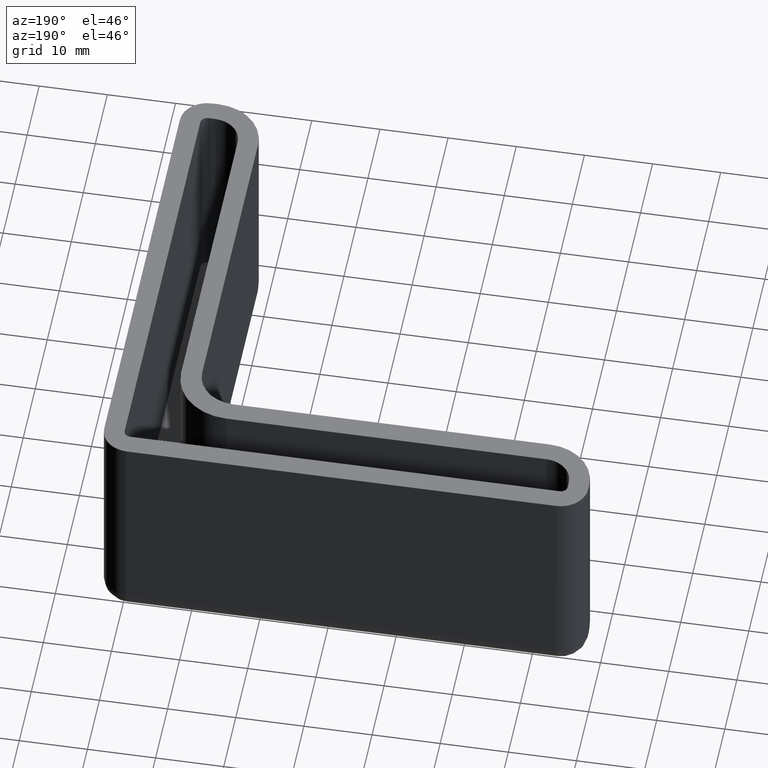
[diagram: clean part render]
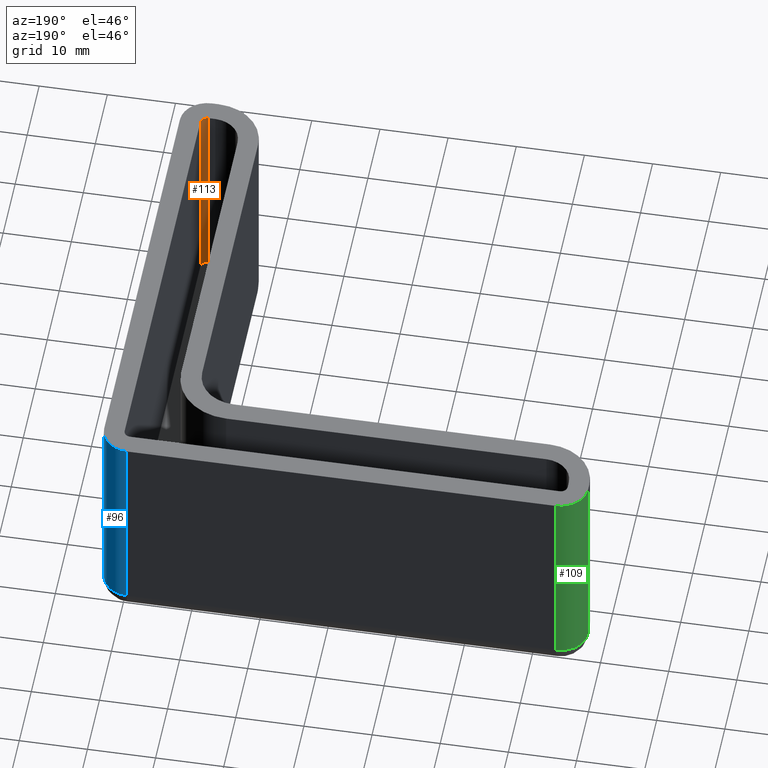
[diagram: same view with three faces highlighted in distinct colors, each labeled with its STEP entity id]
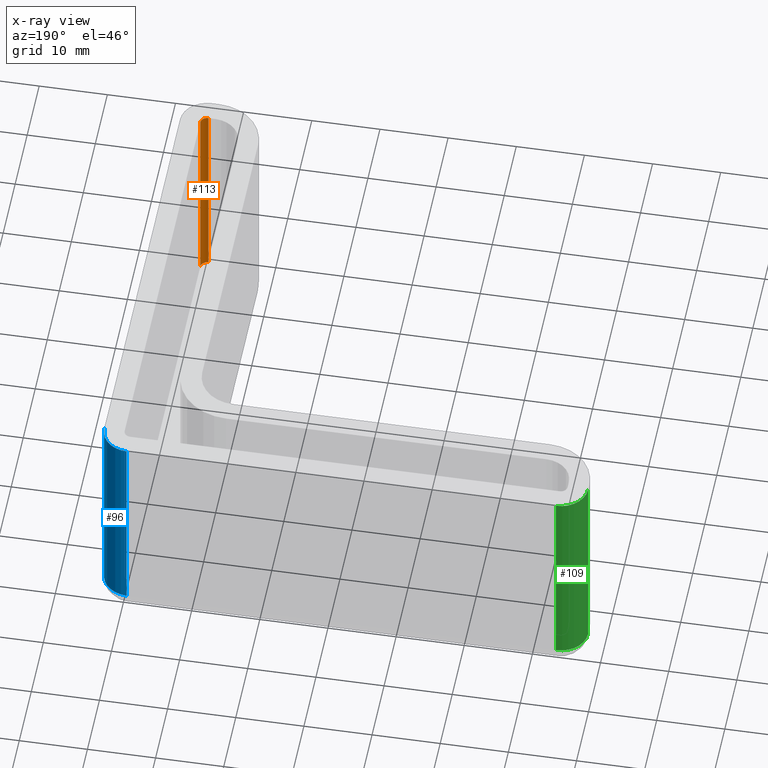
[diagram: x-ray of the same camera — body ghosted, the three highlighted faces saturated]
A machine part, auxiliary view with three faces highlighted in distinct colors.
The next image is the same camera in x-ray (body ghosted, the three faces saturated) — at least one of them is partly hidden behind the body in this view.
Their STEP definitions:

[orange] entity #113 — the highlighted cylindrical surface (edge-blend (fillet) strip) has radius 1 mm, axis along (-0, 0, -1).
#113 = ADVANCED_FACE( '', ( #192 ), #193, .F. );
#192 = FACE_OUTER_BOUND( '', #316, .T. );
#193 = CYLINDRICAL_SURFACE( '', #317, 1.00000000000000 );
#316 = EDGE_LOOP( '', ( #611, #612, #613, #614 ) );
#317 = AXIS2_PLACEMENT_3D( '', #615, #616, #617 );
#611 = ORIENTED_EDGE( '', *, *, #664, .F. );
#612 = ORIENTED_EDGE( '', *, *, #713, .T. );
#613 = ORIENTED_EDGE( '', *, *, #649, .T. );
#614 = ORIENTED_EDGE( '', *, *, #667, .T. );
#615 = CARTESIAN_POINT( '', ( -0.999999999999997, -64.0000000000000, -30.0000000000000 ) );
#616 = DIRECTION( '', ( -3.58678896750442E-017, 8.65927457071936E-017, -1.00000000000000 ) );
#617 = DIRECTION( '', ( 0.707106781186549, -0.707106781186546, -8.65927457071935E-017 ) );
#649 = EDGE_CURVE( '', #773, #771, #774, .T. );
#664 = EDGE_CURVE( '', #800, #802, #803, .T. );
#667 = EDGE_CURVE( '', #771, #802, #806, .T. );
#713 = EDGE_CURVE( '', #800, #773, #869, .T. );
#771 = VERTEX_POINT( '', #943 );
#773 = VERTEX_POINT( '', #946 );
#774 = CIRCLE( '', #947, 1.00000000000000 );
#800 = VERTEX_POINT( '', #980 );
#802 = VERTEX_POINT( '', #983 );
#803 = CIRCLE( '', #984, 1.00000000000000 );
#806 = LINE( '', #989, #990 );
#869 = LINE( '', #1078, #1079 );
#943 = CARTESIAN_POINT( '', ( 7.80625564189563E-015, -64.0000000000000, -3.46944695195361E-015 ) );
#946 = CARTESIAN_POINT( '', ( -0.999999999999990, -65.0000000000000, -3.46944695195361E-015 ) );
#947 = AXIS2_PLACEMENT_3D( '', #1139, #1140, #1141 );
#980 = CARTESIAN_POINT( '', ( -0.999999999999997, -65.0000000000000, -30.0000000000000 ) );
#983 = CARTESIAN_POINT( '', ( 8.67361737988404E-016, -64.0000000000000, -30.0000000000000 ) );
#984 = AXIS2_PLACEMENT_3D( '', #1168, #1169, #1170 );
#989 = CARTESIAN_POINT( '', ( 8.67361737988404E-016, -64.0000000000000, -30.0000000000000 ) );
#990 = VECTOR( '', #1173, 1000.00000000000 );
#1078 = CARTESIAN_POINT( '', ( -0.999999999999997, -65.0000000000000, -30.0000000000000 ) );
#1079 = VECTOR( '', #1259, 1000.00000000000 );
#1139 = CARTESIAN_POINT( '', ( -1.00000000000000, -64.0000000000000, -3.46944695195361E-015 ) );
#1140 = DIRECTION( '', ( 3.58678896750442E-017, -8.65927457071936E-017, 1.00000000000000 ) );
#1141 = DIRECTION( '', ( 0.707106781186549, -0.707106781186546, -8.65927457071935E-017 ) );
#1168 = CARTESIAN_POINT( '', ( -0.999999999999997, -64.0000000000000, -30.0000000000000 ) );
#1169 = DIRECTION( '', ( 3.58678896750442E-017, -8.65927457071936E-017, 1.00000000000000 ) );
#1170 = DIRECTION( '', ( 0.707106781186549, -0.707106781186546, -8.65927457071935E-017 ) );
#1173 = DIRECTION( '', ( -3.58678896750442E-017, 8.65927457071936E-017, -1.00000000000000 ) );
#1259 = DIRECTION( '', ( 3.58678896750442E-017, -8.65927457071936E-017, 1.00000000000000 ) );

[blue] entity #96 — the highlighted cylindrical surface (edge-blend (fillet) strip) has radius 4 mm, axis along (-0, 0, -1).
#96 = ADVANCED_FACE( '', ( #158 ), #159, .T. );
#158 = FACE_OUTER_BOUND( '', #267, .T. );
#159 = CYLINDRICAL_SURFACE( '', #268, 4.00000000000000 );
#267 = EDGE_LOOP( '', ( #495, #496, #497, #498 ) );
#268 = AXIS2_PLACEMENT_3D( '', #499, #500, #501 );
#495 = ORIENTED_EDGE( '', *, *, #680, .F. );
#496 = ORIENTED_EDGE( '', *, *, #695, .T. );
#497 = ORIENTED_EDGE( '', *, *, #634, .T. );
#498 = ORIENTED_EDGE( '', *, *, #696, .T. );
#499 = CARTESIAN_POINT( '', ( -1.00000000000000, -1.00000000000000, -30.0000000000000 ) );
#500 = DIRECTION( '', ( -3.58678896750442E-017, 8.65927457071936E-017, -1.00000000000000 ) );
#501 = DIRECTION( '', ( 0.707106781186547, 0.707106781186548, 3.58678896750443E-017 ) );
#634 = EDGE_CURVE( '', #744, #742, #745, .T. );
#680 = EDGE_CURVE( '', #823, #815, #825, .T. );
#695 = EDGE_CURVE( '', #823, #744, #848, .T. );
#696 = EDGE_CURVE( '', #742, #815, #849, .T. );
#742 = VERTEX_POINT( '', #906 );
#744 = VERTEX_POINT( '', #909 );
#745 = CIRCLE( '', #910, 4.00000000000000 );
#815 = VERTEX_POINT( '', #1006 );
#823 = VERTEX_POINT( '', #1016 );
#825 = CIRCLE( '', #1018, 4.00000000000000 );
#848 = LINE( '', #1047, #1048 );
#849 = LINE( '', #1049, #1050 );
#906 = CARTESIAN_POINT( '', ( 3.00000000000000, -1.00000000000000, 0.000000000000000 ) );
#909 = CARTESIAN_POINT( '', ( -0.999999999999999, 3.00000000000000, 0.000000000000000 ) );
#910 = AXIS2_PLACEMENT_3D( '', #1110, #1111, #1112 );
#1006 = CARTESIAN_POINT( '', ( 3.00000000000000, -1.00000000000000, -30.0000000000000 ) );
#1016 = CARTESIAN_POINT( '', ( -1.00000000000000, 3.00000000000000, -30.0000000000000 ) );
#1018 = AXIS2_PLACEMENT_3D( '', #1192, #1193, #1194 );
#1047 = CARTESIAN_POINT( '', ( -1.00000000000000, 3.00000000000000, -30.0000000000000 ) );
#1048 = VECTOR( '', #1225, 1000.00000000000 );
#1049 = CARTESIAN_POINT( '', ( 3.00000000000000, -1.00000000000000, -30.0000000000000 ) );
#1050 = VECTOR( '', #1226, 1000.00000000000 );
#1110 = CARTESIAN_POINT( '', ( -0.999999999999999, -1.00000000000000, 0.000000000000000 ) );
#1111 = DIRECTION( '', ( -3.58678896750442E-017, 8.65927457071936E-017, -1.00000000000000 ) );
#1112 = DIRECTION( '', ( 0.707106781186547, 0.707106781186548, 3.58678896750443E-017 ) );
#1192 = CARTESIAN_POINT( '', ( -1.00000000000000, -1.00000000000000, -30.0000000000000 ) );
#1193 = DIRECTION( '', ( -3.58678896750442E-017, 8.65927457071936E-017, -1.00000000000000 ) );
#1194 = DIRECTION( '', ( 0.707106781186547, 0.707106781186548, 3.58678896750442E-017 ) );
#1225 = DIRECTION( '', ( 3.58678896750442E-017, -8.65927457071936E-017, 1.00000000000000 ) );
#1226 = DIRECTION( '', ( -3.58678896750442E-017, 8.65927457071936E-017, -1.00000000000000 ) );

[green] entity #109 — the highlighted cylindrical surface (edge-blend (fillet) strip) has radius 4 mm, axis along (-0, 0, -1).
#109 = ADVANCED_FACE( '', ( #184 ), #185, .T. );
#184 = FACE_OUTER_BOUND( '', #308, .T. );
#185 = CYLINDRICAL_SURFACE( '', #309, 4.00000000000000 );
#308 = EDGE_LOOP( '', ( #583, #584, #585, #586 ) );
#309 = AXIS2_PLACEMENT_3D( '', #587, #588, #589 );
#583 = ORIENTED_EDGE( '', *, *, #693, .F. );
#584 = ORIENTED_EDGE( '', *, *, #711, .T. );
#585 = ORIENTED_EDGE( '', *, *, #636, .T. );
#586 = ORIENTED_EDGE( '', *, *, #694, .T. );
#587 = CARTESIAN_POINT( '', ( -64.0000000000000, -1.00000000000000, -30.0000000000000 ) );
#588 = DIRECTION( '', ( -3.58678896750442E-017, 8.65927457071936E-017, -1.00000000000000 ) );
#589 = DIRECTION( '', ( -0.707106781186546, 0.707106781186549, 8.65927457071936E-017 ) );
#636 = EDGE_CURVE( '', #748, #746, #749, .T. );
#693 = EDGE_CURVE( '', #714, #843, #846, .T. );
#694 = EDGE_CURVE( '', #746, #843, #847, .T. );
#711 = EDGE_CURVE( '', #714, #748, #867, .T. );
#714 = VERTEX_POINT( '', #870 );
#746 = VERTEX_POINT( '', #911 );
#748 = VERTEX_POINT( '', #914 );
#749 = CIRCLE( '', #915, 4.00000000000000 );
#843 = VERTEX_POINT( '', #1040 );
#846 = CIRCLE( '', #1044, 4.00000000000000 );
#847 = LINE( '', #1045, #1046 );
#867 = LINE( '', #1074, #1075 );
#870 = CARTESIAN_POINT( '', ( -68.0000000000000, -1.00000000000001, -30.0000000000000 ) );
#911 = CARTESIAN_POINT( '', ( -64.0000000000000, 3.00000000000000, 3.46944695195361E-015 ) );
#914 = CARTESIAN_POINT( '', ( -68.0000000000000, -1.00000000000001, 0.000000000000000 ) );
#915 = AXIS2_PLACEMENT_3D( '', #1114, #1115, #1116 );
#1040 = CARTESIAN_POINT( '', ( -64.0000000000000, 3.00000000000000, -30.0000000000000 ) );
#1044 = AXIS2_PLACEMENT_3D( '', #1221, #1222, #1223 );
#1045 = CARTESIAN_POINT( '', ( -64.0000000000000, 3.00000000000000, -30.0000000000000 ) );
#1046 = VECTOR( '', #1224, 1000.00000000000 );
#1074 = CARTESIAN_POINT( '', ( -68.0000000000000, -1.00000000000001, -30.0000000000000 ) );
#1075 = VECTOR( '', #1257, 1000.00000000000 );
#1114 = CARTESIAN_POINT( '', ( -64.0000000000000, -1.00000000000001, 3.46944695195361E-015 ) );
#1115 = DIRECTION( '', ( -3.58678896750442E-017, 8.65927457071936E-017, -1.00000000000000 ) );
#1116 = DIRECTION( '', ( -0.707106781186546, 0.707106781186549, 8.65927457071936E-017 ) );
#1221 = CARTESIAN_POINT( '', ( -64.0000000000000, -1.00000000000000, -30.0000000000000 ) );
#1222 = DIRECTION( '', ( -3.58678896750442E-017, 8.65927457071936E-017, -1.00000000000000 ) );
#1223 = DIRECTION( '', ( -0.707106781186548, 0.707106781186547, 8.65927457071935E-017 ) );
#1224 = DIRECTION( '', ( -3.58678896750442E-017, 8.65927457071936E-017, -1.00000000000000 ) );
#1257 = DIRECTION( '', ( 3.58678896750442E-017, -8.65927457071936E-017, 1.00000000000000 ) );